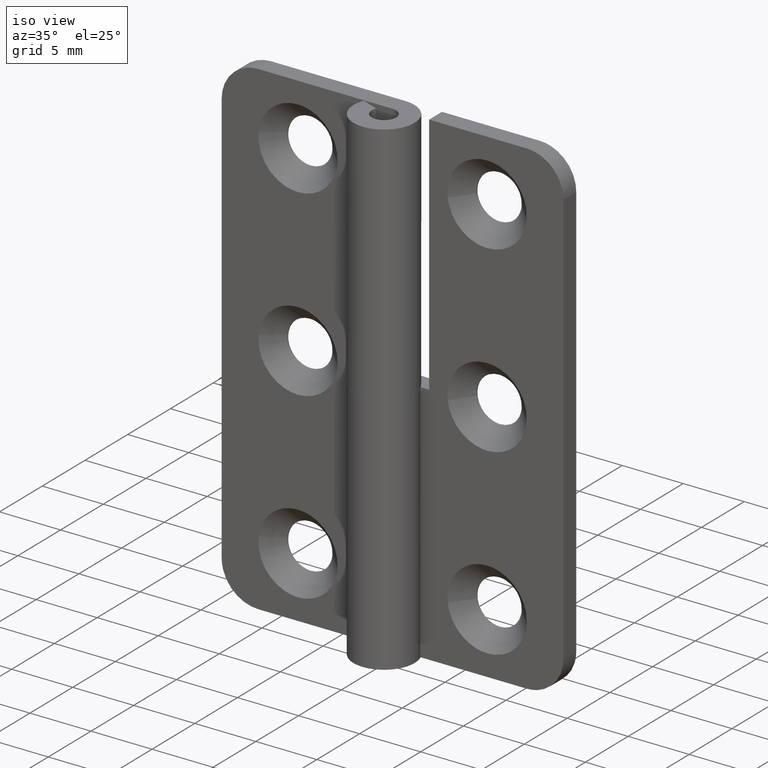
[diagram: clean part render]
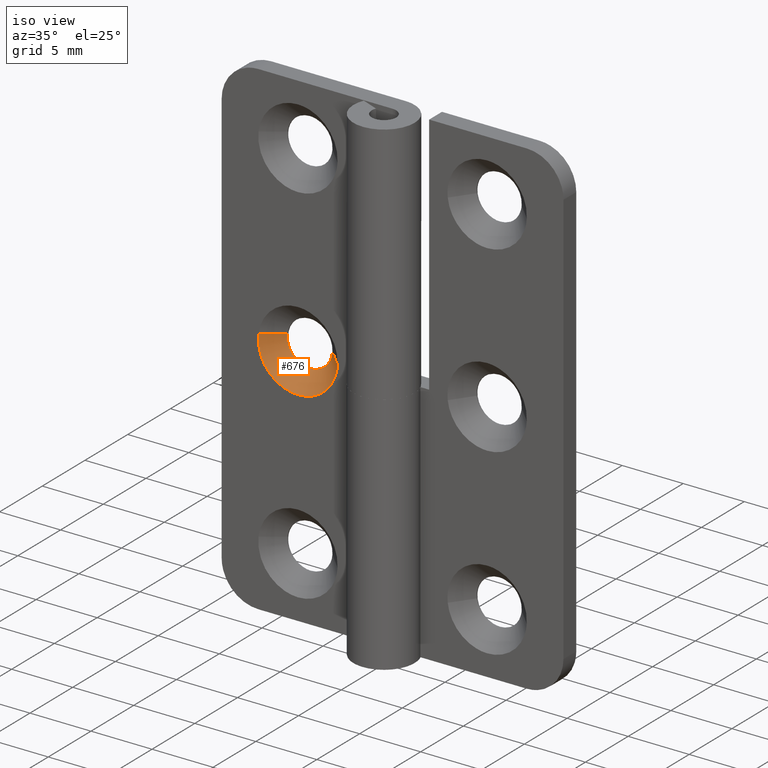
[diagram: same view with one face highlighted and labeled with its STEP entity id]
A machine part, iso view. The second image highlights one B-rep face of the part: STEP entity #676.
In plain terms, the highlighted face is a freeform B-spline surface patch.
Its self-contained STEP definition (entity closure, byte-faithful):
#410=CARTESIAN_POINT('',(-9.587067623776235,2.399999999947706,20.218363334528998));
#411=VERTEX_POINT('',#410);
#412=CARTESIAN_POINT('',(-8.745023967877435,2.400000000000000,18.440375909602110));
#413=VERTEX_POINT('',#412);
#414=CARTESIAN_POINT('',(-9.587067623776234,2.399999999947706,20.218363334528998));
#415=CARTESIAN_POINT('',(-9.600000000000000,2.400000000000000,20.109564621768161));
#416=CARTESIAN_POINT('',(-9.600000000000001,2.400000000000000,20.0));
#417=CARTESIAN_POINT('',(-9.600000000000000,2.400000000000000,18.985841736375804));
#418=CARTESIAN_POINT('',(-8.745023967877435,2.399999999999999,18.440375909602110));
#426=(BOUNDED_CURVE()B_SPLINE_CURVE(2,(#414,#415,#416,#417,#418),.UNSPECIFIED.,.F.,.U.)B_SPLINE_CURVE_WITH_KNOTS((3,2,3),(0.229562473440609,0.250000000000000,0.407950112627187),.UNSPECIFIED.)CURVE()GEOMETRIC_REPRESENTATION_ITEM()RATIONAL_B_SPLINE_CURVE((0.956026754040813,0.976055948245738,1.0,0.814949932402704,0.863729296954699))REPRESENTATION_ITEM(''));
#427=EDGE_CURVE('',#411,#413,#426,.T.);
#470=CARTESIAN_POINT('',(-5.905702932593936,2.400000000000000,19.854850672900650));
#471=VERTEX_POINT('',#470);
#477=CARTESIAN_POINT('',(-5.903450622891949,2.399999999948509,19.887060201468270));
#478=VERTEX_POINT('',#477);
#479=CARTESIAN_POINT('',(-5.905702932593936,2.400000000000001,19.854850672900653));
#480=CARTESIAN_POINT('',(-5.904436233636984,2.399999999999999,19.870945609186130));
#481=CARTESIAN_POINT('',(-5.903450622891949,2.399999999948509,19.887060201468273));
#489=(BOUNDED_CURVE()B_SPLINE_CURVE(2,(#479,#480,#481),.UNSPECIFIED.,.F.,.U.)B_SPLINE_CURVE_WITH_KNOTS((3,3),(0.736331300632240,0.739332962169250),.UNSPECIFIED.)CURVE()GEOMETRIC_REPRESENTATION_ITEM()RATIONAL_B_SPLINE_CURVE((0.969723356170716,0.972855475488908,0.976072041517353))REPRESENTATION_ITEM(''));
#490=EDGE_CURVE('',#471,#478,#489,.T.);
#543=CARTESIAN_POINT('',(-7.750000000000000,2.400000000000000,18.149999999999999));
#544=VERTEX_POINT('',#543);
#545=CARTESIAN_POINT('',(-8.745023967877435,2.399999999999999,18.440375909602110));
#546=CARTESIAN_POINT('',(-8.289881902454161,2.400000000000000,18.149999999999991));
#547=CARTESIAN_POINT('',(-7.750000000000000,2.400000000000000,18.149999999999999));
#555=(BOUNDED_CURVE()B_SPLINE_CURVE(2,(#545,#546,#547),.UNSPECIFIED.,.F.,.U.)B_SPLINE_CURVE_WITH_KNOTS((3,3),(0.407950112627186,0.500000000000000),.UNSPECIFIED.)CURVE()GEOMETRIC_REPRESENTATION_ITEM()RATIONAL_B_SPLINE_CURVE((0.863729296954699,0.892156848783843,1.0))REPRESENTATION_ITEM(''));
#556=EDGE_CURVE('',#413,#544,#555,.T.);
#558=CARTESIAN_POINT('',(-7.750000000000000,2.400000000000000,18.149999999999999));
#559=CARTESIAN_POINT('',(-6.039877590437590,2.400000000000000,18.149999999999999));
#560=CARTESIAN_POINT('',(-5.905702932593936,2.400000000000001,19.854850672900653));
#568=(BOUNDED_CURVE()B_SPLINE_CURVE(2,(#558,#559,#560),.UNSPECIFIED.,.F.,.U.)B_SPLINE_CURVE_WITH_KNOTS((3,3),(0.500000000000000,0.736331300632240),.UNSPECIFIED.)CURVE()GEOMETRIC_REPRESENTATION_ITEM()RATIONAL_B_SPLINE_CURVE((1.0,0.723120658605814,0.969723356170715))REPRESENTATION_ITEM(''));
#569=EDGE_CURVE('',#544,#471,#568,.T.);
#604=CARTESIAN_POINT('',(-9.552312290350056,2.435000000000001,20.214232135902023));
#605=CARTESIAN_POINT('',(-9.558443522039219,2.435000000000001,20.162650732477935));
#606=CARTESIAN_POINT('',(-9.561614659135689,2.435000000000001,20.110803099255769));
#607=CARTESIAN_POINT('',(-9.672417758391454,2.435000000000001,18.299188440120080));
#608=CARTESIAN_POINT('',(-7.860803099255765,2.435000000000001,18.188385340864311));
#609=CARTESIAN_POINT('',(-6.049188440120076,2.435000000000001,18.077582241608543));
#610=CARTESIAN_POINT('',(-5.938385340864311,2.435000000000001,19.889196900744238));
#611=CARTESIAN_POINT('',(-11.012905177440210,0.964125000000000,20.387845740802774));
#612=CARTESIAN_POINT('',(-11.024005155912189,0.964125000000000,20.294462796463311));
#613=CARTESIAN_POINT('',(-11.029746180764450,0.964125000000000,20.200597869844099));
#614=CARTESIAN_POINT('',(-11.230344050608547,0.964125000000000,16.920851689079651));
#615=CARTESIAN_POINT('',(-7.950597869844098,0.964125000000000,16.720253819235548));
#616=CARTESIAN_POINT('',(-4.670851689079648,0.964125000000000,16.519655949391453));
#617=CARTESIAN_POINT('',(-4.470253819235550,0.964125000000000,19.799402130155901));
#625=(BOUNDED_SURFACE()B_SPLINE_SURFACE(2,1,((#604,#611),(#605,#612),(#606,#613),(#607,#614),(#608,#615),(#609,#616),(#610,#617)),.UNSPECIFIED.,.F.,.F.,.U.)B_SPLINE_SURFACE_WITH_KNOTS((3,2,2,3),(2,2),(0.0,0.217768638282031,5.661984595332802,11.106200552383569),(0.0,2.080131373555525),.UNSPECIFIED.)GEOMETRIC_REPRESENTATION_ITEM()RATIONAL_B_SPLINE_SURFACE(((0.977505800795127,0.977505800795127),(0.988284271247462,0.988284271247462),(1.0,1.0),(0.707106781186548,0.707106781186548),(1.0,1.0),(0.707106781186548,0.707106781186548),(1.0,1.0)))REPRESENTATION_ITEM('')SURFACE());
#626=ORIENTED_EDGE('',*,*,#427,.F.);
#627=CARTESIAN_POINT('',(-10.977280960683339,0.999999999979498,20.383611262796151));
#628=VERTEX_POINT('',#627);
#629=CARTESIAN_POINT('',(-9.587067623776235,2.399999999947706,20.218363334528998));
#630=CARTESIAN_POINT('',(-10.977280960683339,0.999999999979498,20.383611262796151));
#631=QUASI_UNIFORM_CURVE('',1,(#629,#630),.UNSPECIFIED.,.F.,.U.);
#632=EDGE_CURVE('',#411,#628,#631,.T.);
#633=ORIENTED_EDGE('',*,*,#632,.T.);
#634=CARTESIAN_POINT('',(-7.750000000000000,1.0,16.750000000000000));
#635=VERTEX_POINT('',#634);
#636=CARTESIAN_POINT('',(-10.977280960683338,0.999999999979498,20.383611262796151));
#637=CARTESIAN_POINT('',(-10.999999999999995,1.0,20.192478389029656));
#638=CARTESIAN_POINT('',(-11.0,1.0,20.0));
#639=CARTESIAN_POINT('',(-11.0,1.0,16.750000000000000));
#640=CARTESIAN_POINT('',(-7.750000000000000,1.0,16.750000000000000));
#648=(BOUNDED_CURVE()B_SPLINE_CURVE(2,(#636,#637,#638,#639,#640),.UNSPECIFIED.,.F.,.U.)B_SPLINE_CURVE_WITH_KNOTS((3,2,3),(0.229562473498964,0.250000000000000,0.500000000000000),.UNSPECIFIED.)CURVE()GEOMETRIC_REPRESENTATION_ITEM()RATIONAL_B_SPLINE_CURVE((0.956026754155191,0.976055948314105,1.0,0.707106781186547,1.0))REPRESENTATION_ITEM(''));
#649=EDGE_CURVE('',#628,#635,#648,.T.);
#650=ORIENTED_EDGE('',*,*,#649,.T.);
#651=CARTESIAN_POINT('',(-4.506061905112270,0.999999999968991,19.801592246276229));
#652=VERTEX_POINT('',#651);
#653=CARTESIAN_POINT('',(-7.750000000000000,1.0,16.750000000000000));
#654=CARTESIAN_POINT('',(-4.692705282997627,1.0,16.750000000000000));
#655=CARTESIAN_POINT('',(-4.506061905112270,0.999999999968991,19.801592246276225));
#663=(BOUNDED_CURVE()B_SPLINE_CURVE(2,(#653,#654,#655),.UNSPECIFIED.,.F.,.U.)B_SPLINE_CURVE_WITH_KNOTS((3,3),(0.500000000000000,0.739332962217118),.UNSPECIFIED.)CURVE()GEOMETRIC_REPRESENTATION_ITEM()RATIONAL_B_SPLINE_CURVE((1.0,0.719603993312279,0.976072041619943))REPRESENTATION_ITEM(''));
#664=EDGE_CURVE('',#635,#652,#663,.T.);
#665=ORIENTED_EDGE('',*,*,#664,.T.);
#666=CARTESIAN_POINT('',(-5.903450622891949,2.399999999948509,19.887060201468270));
#667=CARTESIAN_POINT('',(-4.506061905112270,0.999999999968991,19.801592246276229));
#668=QUASI_UNIFORM_CURVE('',1,(#666,#667),.UNSPECIFIED.,.F.,.U.);
#669=EDGE_CURVE('',#478,#652,#668,.T.);
#670=ORIENTED_EDGE('',*,*,#669,.F.);
#671=ORIENTED_EDGE('',*,*,#490,.F.);
#672=ORIENTED_EDGE('',*,*,#569,.F.);
#673=ORIENTED_EDGE('',*,*,#556,.F.);
#674=EDGE_LOOP('',(#626,#633,#650,#665,#670,#671,#672,#673));
#675=FACE_OUTER_BOUND('',#674,.T.);
#676=ADVANCED_FACE('',(#675),#625,.F.);